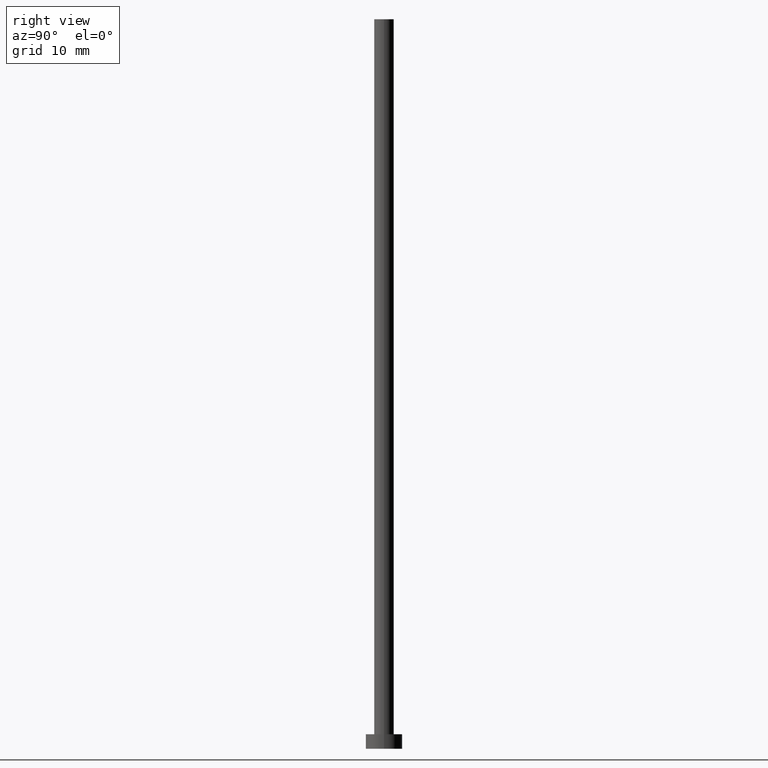
[diagram: clean part render]
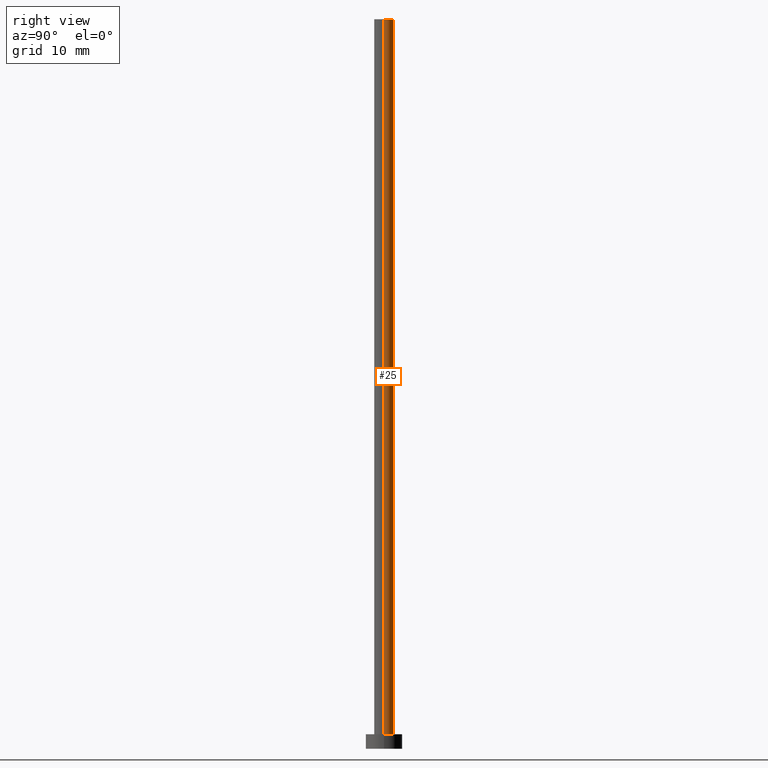
[diagram: same view with one face highlighted and labeled with its STEP entity id]
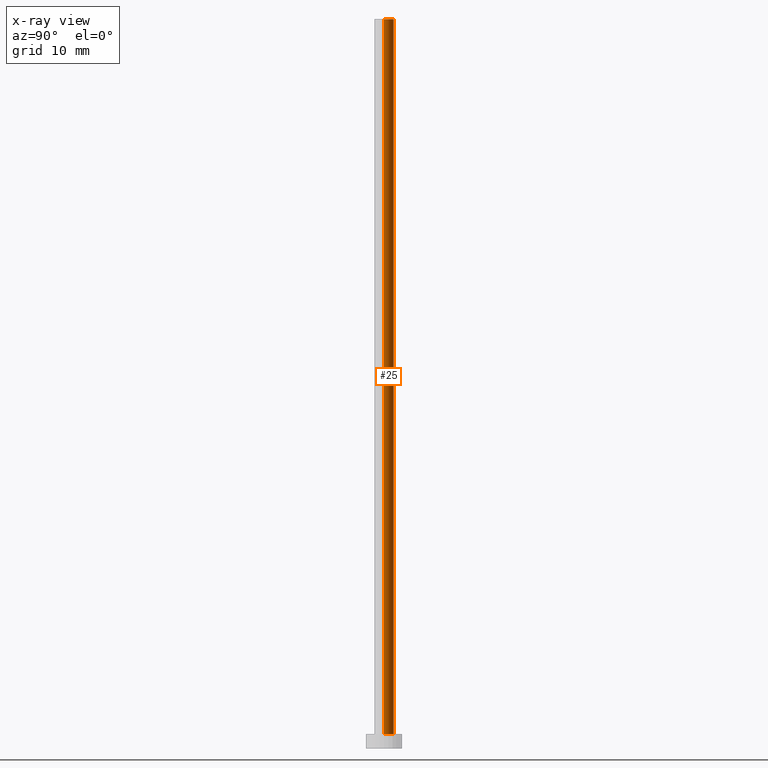
[diagram: x-ray of the same camera — body ghosted, the highlighted face saturated]
A machine part, right view. The second image highlights one B-rep face of the part: STEP entity #25.
The next image is the same camera in x-ray: the body ghosted, the highlighted face saturated — about 0% of this face is hidden behind the body in this view.
In plain terms, the highlighted cylindrical surface (edge-blend (fillet) strip) has radius 1.35 mm, axis along (-0, -0, -1).
Its self-contained STEP definition (entity closure, byte-faithful):
#5 = DIRECTION ( 'NONE',  ( 1.000000000000000000, 0.000000000000000000, 0.000000000000000000 ) ) ;
#9 = CARTESIAN_POINT ( 'NONE',  ( 0.000000000000000000, 0.000000000000000000, 100.0000000000000000 ) ) ;
#17 = LINE ( 'NONE', #210, #116 ) ;
#23 = CIRCLE ( 'NONE', #77, 1.350000000000000089 ) ;
#25 = ADVANCED_FACE ( 'NONE', ( #238 ), #103, .T. ) ;
#26 = AXIS2_PLACEMENT_3D ( 'NONE', #57, #92, #146 ) ;
#36 = LINE ( 'NONE', #122, #196 ) ;
#44 = AXIS2_PLACEMENT_3D ( 'NONE', #62, #201, #99 ) ;
#48 = ORIENTED_EDGE ( 'NONE', *, *, #155, .T. ) ;
#57 = CARTESIAN_POINT ( 'NONE',  ( 0.000000000000000000, 0.000000000000000000, 2.000000000000000000 ) ) ;
#62 = CARTESIAN_POINT ( 'NONE',  ( 0.000000000000000000, 0.000000000000000000, 100.0000000000000000 ) ) ;
#65 = ORIENTED_EDGE ( 'NONE', *, *, #186, .F. ) ;
#77 = AXIS2_PLACEMENT_3D ( 'NONE', #9, #160, #5 ) ;
#81 = DIRECTION ( 'NONE',  ( -0.000000000000000000, -0.000000000000000000, -1.000000000000000000 ) ) ;
#85 = EDGE_CURVE ( 'NONE', #177, #147, #23, .T. ) ;
#92 = DIRECTION ( 'NONE',  ( 0.000000000000000000, 0.000000000000000000, 1.000000000000000000 ) ) ;
#99 = DIRECTION ( 'NONE',  ( -1.000000000000000000, 0.000000000000000000, 0.000000000000000000 ) ) ;
#103 = CYLINDRICAL_SURFACE ( 'NONE', #44, 1.350000000000000089 ) ;
#106 = VERTEX_POINT ( 'NONE', #240 ) ;
#116 = VECTOR ( 'NONE', #182, 1000.000000000000000 ) ;
#120 = EDGE_LOOP ( 'NONE', ( #244, #48, #130, #65 ) ) ;
#122 = CARTESIAN_POINT ( 'NONE',  ( -1.350000000000000089, 0.000000000000000000, 100.0000000000000000 ) ) ;
#123 = VERTEX_POINT ( 'NONE', #229 ) ;
#129 = CARTESIAN_POINT ( 'NONE',  ( 1.350000000000000089, 1.653273178848926867E-16, 100.0000000000000000 ) ) ;
#130 = ORIENTED_EDGE ( 'NONE', *, *, #218, .T. ) ;
#141 = CARTESIAN_POINT ( 'NONE',  ( -1.350000000000000089, 0.000000000000000000, 100.0000000000000000 ) ) ;
#146 = DIRECTION ( 'NONE',  ( 1.000000000000000000, 0.000000000000000000, 0.000000000000000000 ) ) ;
#147 = VERTEX_POINT ( 'NONE', #141 ) ;
#152 = CIRCLE ( 'NONE', #26, 1.350000000000000089 ) ;
#155 = EDGE_CURVE ( 'NONE', #177, #123, #17, .T. ) ;
#160 = DIRECTION ( 'NONE',  ( 0.000000000000000000, 0.000000000000000000, 1.000000000000000000 ) ) ;
#177 = VERTEX_POINT ( 'NONE', #129 ) ;
#182 = DIRECTION ( 'NONE',  ( -0.000000000000000000, -0.000000000000000000, -1.000000000000000000 ) ) ;
#186 = EDGE_CURVE ( 'NONE', #147, #106, #36, .T. ) ;
#196 = VECTOR ( 'NONE', #81, 1000.000000000000000 ) ;
#201 = DIRECTION ( 'NONE',  ( -0.000000000000000000, -0.000000000000000000, -1.000000000000000000 ) ) ;
#210 = CARTESIAN_POINT ( 'NONE',  ( 1.350000000000000089, 1.653273178848926867E-16, 100.0000000000000000 ) ) ;
#218 = EDGE_CURVE ( 'NONE', #123, #106, #152, .T. ) ;
#229 = CARTESIAN_POINT ( 'NONE',  ( 1.350000000000000089, 1.653273178848926867E-16, 2.000000000000000000 ) ) ;
#238 = FACE_OUTER_BOUND ( 'NONE', #120, .T. ) ;
#240 = CARTESIAN_POINT ( 'NONE',  ( -1.350000000000000089, 0.000000000000000000, 2.000000000000000000 ) ) ;
#244 = ORIENTED_EDGE ( 'NONE', *, *, #85, .F. ) ;